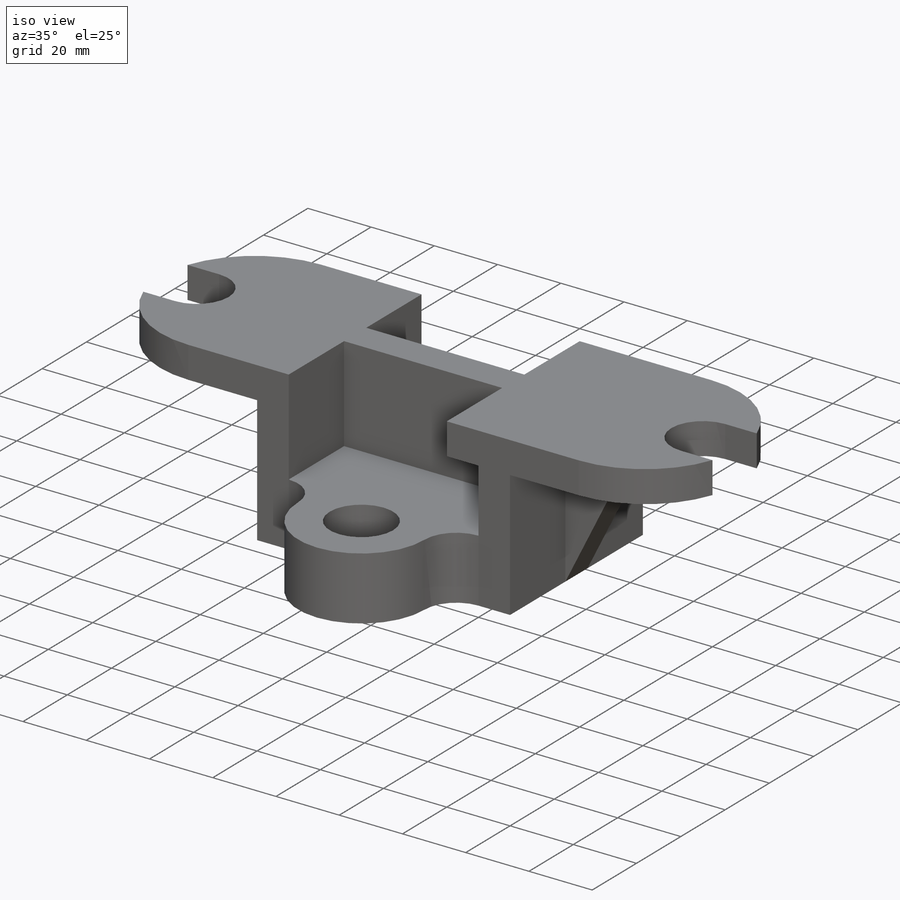
[diagram: iso view]
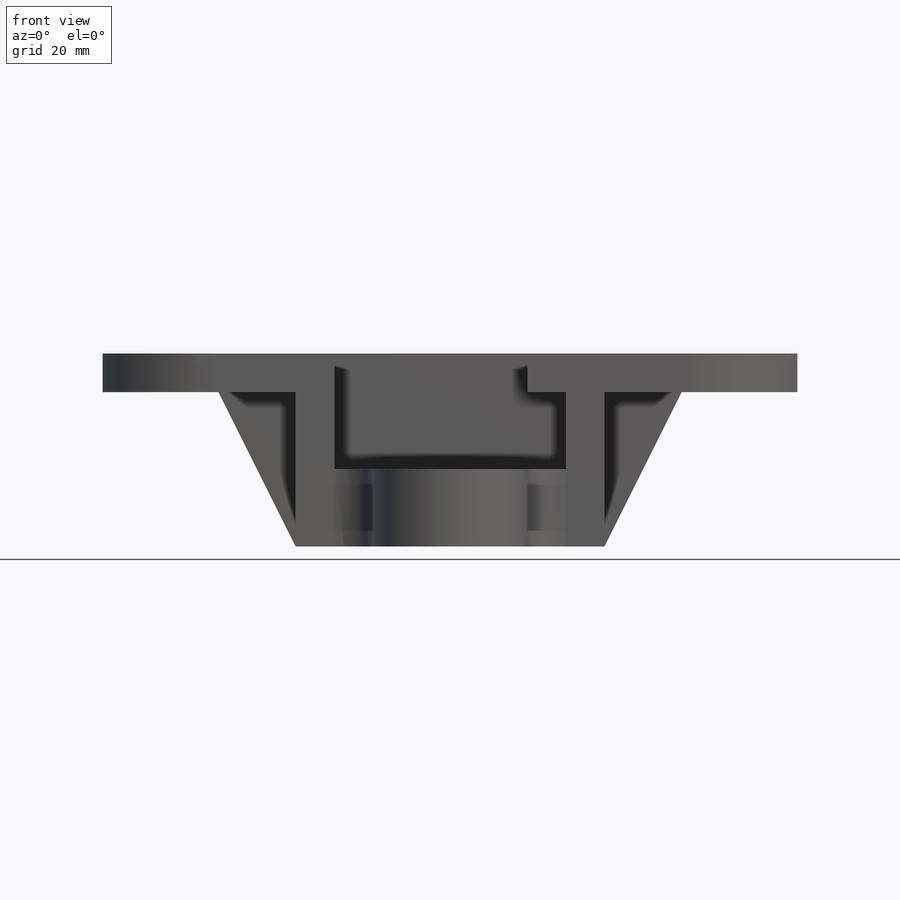
[diagram: front view]
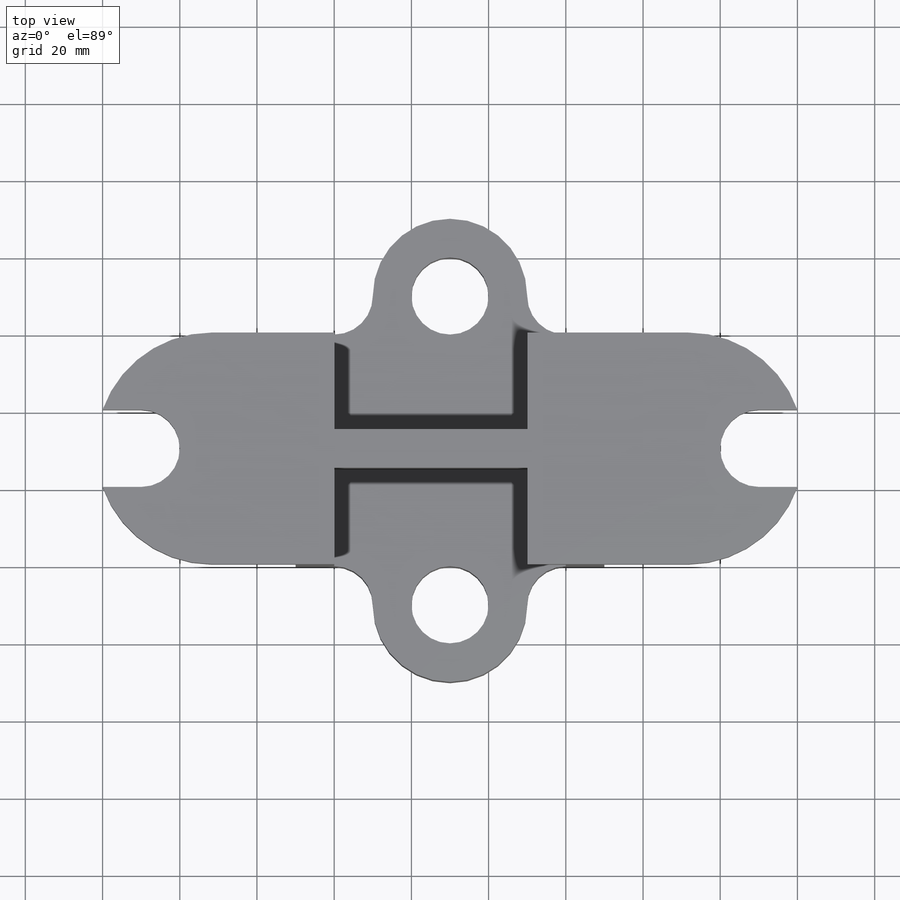
[diagram: top view]
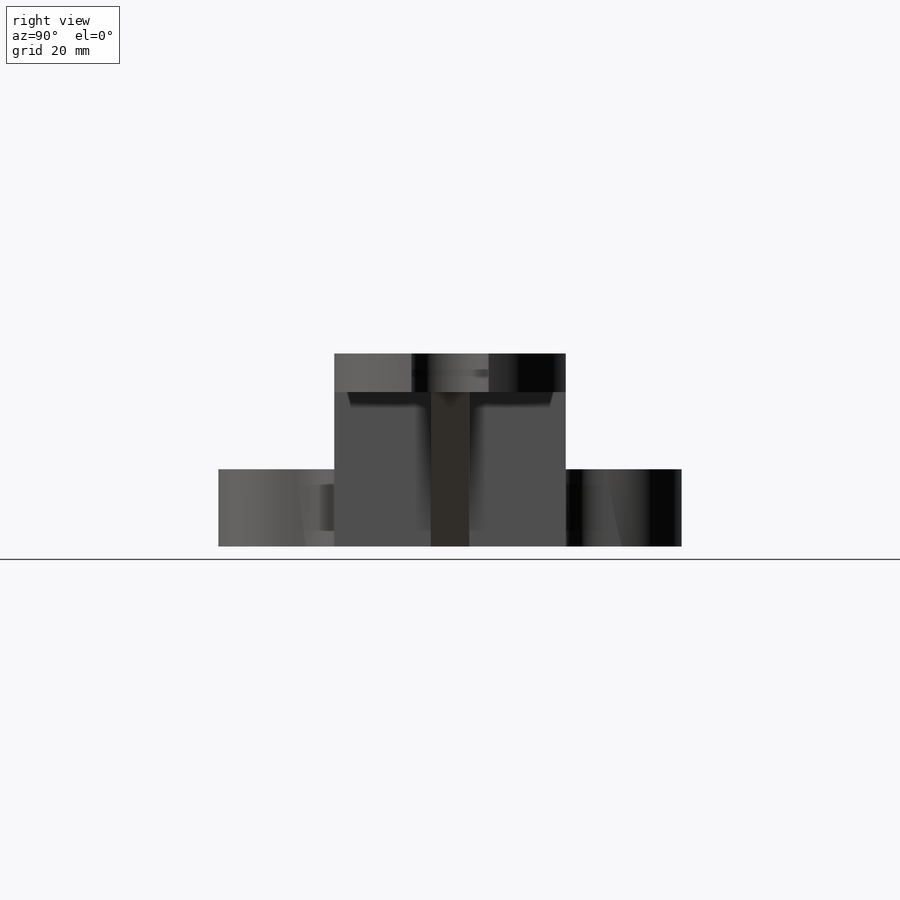
[diagram: right view]
SOLIDWORKS PART (.sldprt)
format: sldprt  version: not decoded by parser v0  size: 364,544 bytes
history: native  units: mm
features: sketch x11, extrude x6, cut_extrude x5, material x1 (+13 scaffold rows collapsed)
feature tree (36):
  scaffold x13  (default folders/planes/origin — collapsed)
  material  "Material <not specified>"
  sketch  "Sketch1"  dims[D1=60.0mm D2=180.0mm]
  extrude  "Boss-Extrude1"  Depth=10mm
  sketch  "Sketch2"  dims[D8=30.0mm D9=30.0mm D1=10.0mm D2=20.0mm D3=10.0mm D4=20.0mm D5=10.0mm D6=10.0mm D7=20.0mm D10=~28.284271mm]
  cut_extrude  "Cut-Extrude1"  Depth=10mm
  sketch  "Sketch3"  dims[D1=10.0mm D2=10.0mm D3=50.0mm D4=50.0mm]
  extrude  "Boss-Extrude2"  Depth=40mm
  sketch  "Sketch4"  dims[D1=10.0mm D2=25.0mm]
  extrude  "Boss-Extrude3"  Depth=20mm
  sketch  "Sketch5"
  cut_extrude  "Cut-Extrude2"  Depth=20mm
  sketch  "Sketch6"  dims[D1=25.0mm D2=10.0mm]
  extrude  "Boss-Extrude4"  Depth=20mm
  sketch  "Sketch7"
  cut_extrude  "Cut-Extrude3"  Depth=20mm
  sketch  "Sketch9"  dims[D3=10.0mm D5=10.0mm D8=20.0mm D10=10.0mm D12=10.0mm D15=20.0mm D1=10.0mm D2=10.0mm D4=10.0mm D6=10.0mm D7=20.0mm D9=10.0mm D11=10.0mm D13=10.0mm D14=10.0mm]
  extrude  "Boss-Extrude5"  Depth=20mm
  sketch  "Sketch10"  dims[D1=20.0mm D2=20.0mm D3=20.0mm D4=0.0mm D5=20.0mm D6=20.0mm]
  cut_extrude  "Cut-Extrude4"  Depth=20mm
  sketch  "Sketch11"  dims[D1=50.0mm D2=50.0mm D3=25.0mm D4=25.0mm D5=10.0mm D6=10.0mm]
  cut_extrude  "Cut-Extrude5"  Depth=20mm
  sketch  "Sketch12"  dims[D1=0.0mm D2=0.0mm]
  extrude  "Boss-Extrude6"  Depth=10mm
decode coverage: 20 of 22 modeling features carry decoded parameters
note: ~ marks probable driven/reference dimensions
note: suppression state not decoded; provenance and decode notes live in map.json
